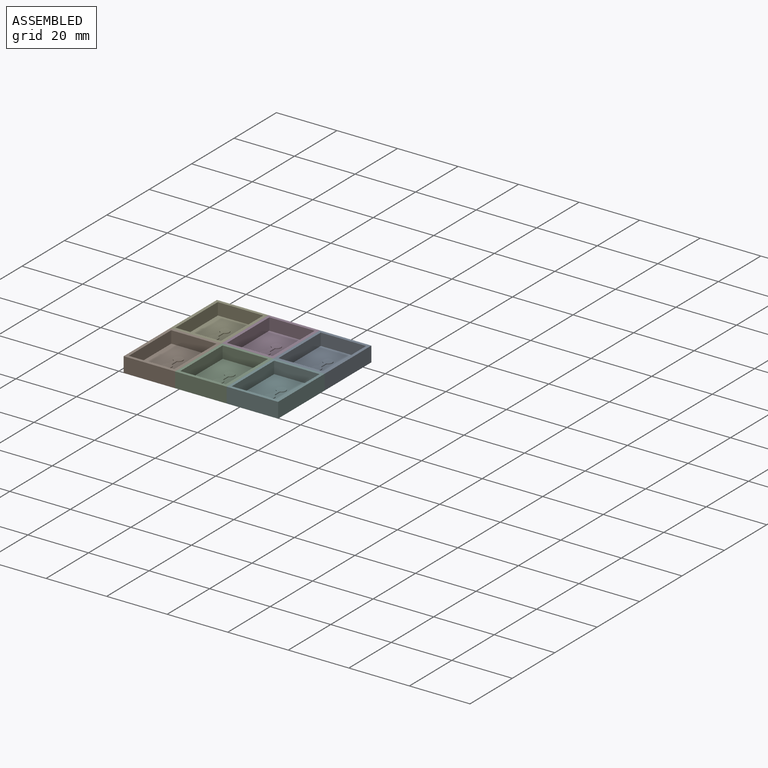
[diagram: assembled view]
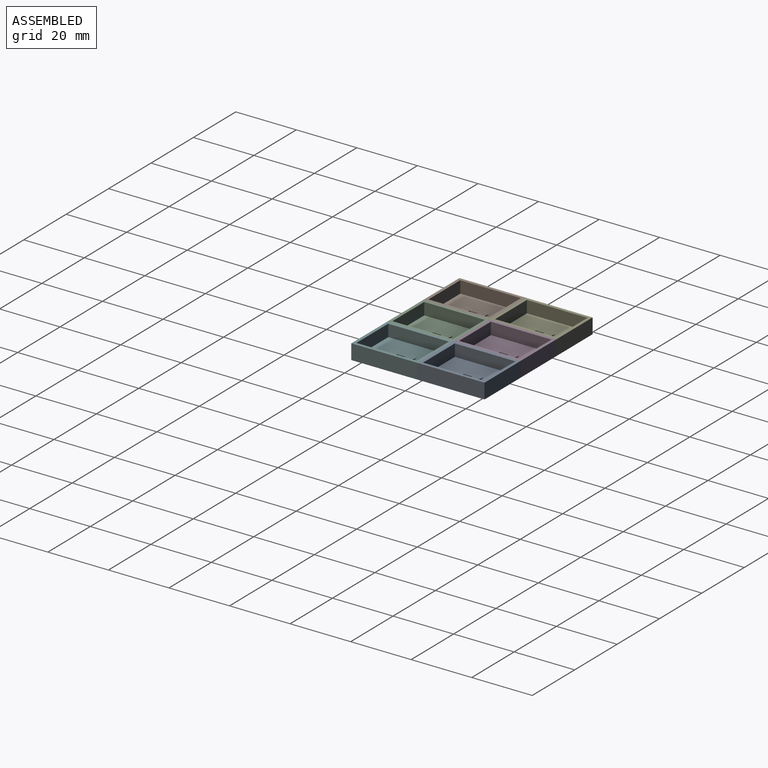
[diagram: assembled view, second angle]
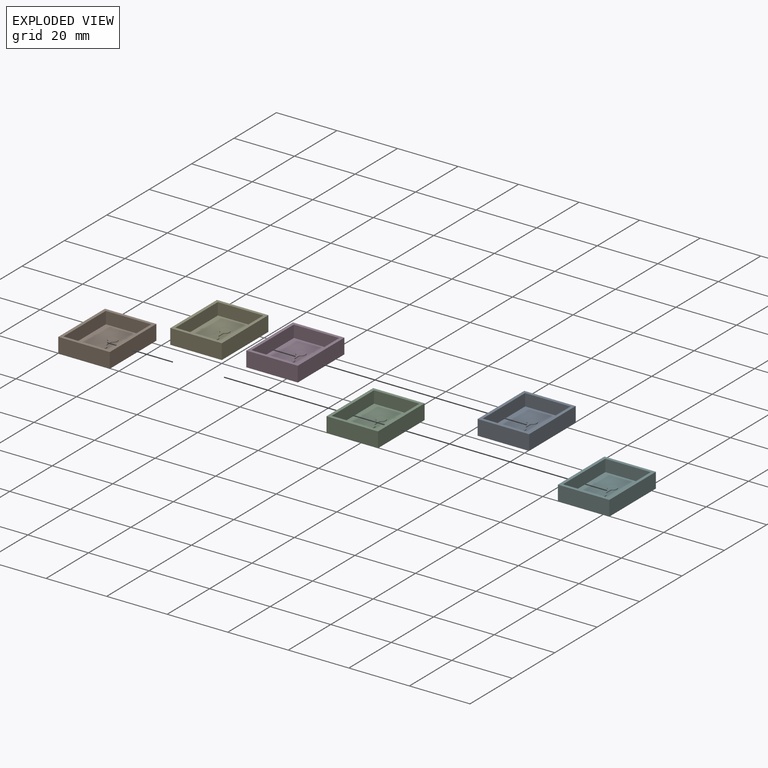
[diagram: exploded view]
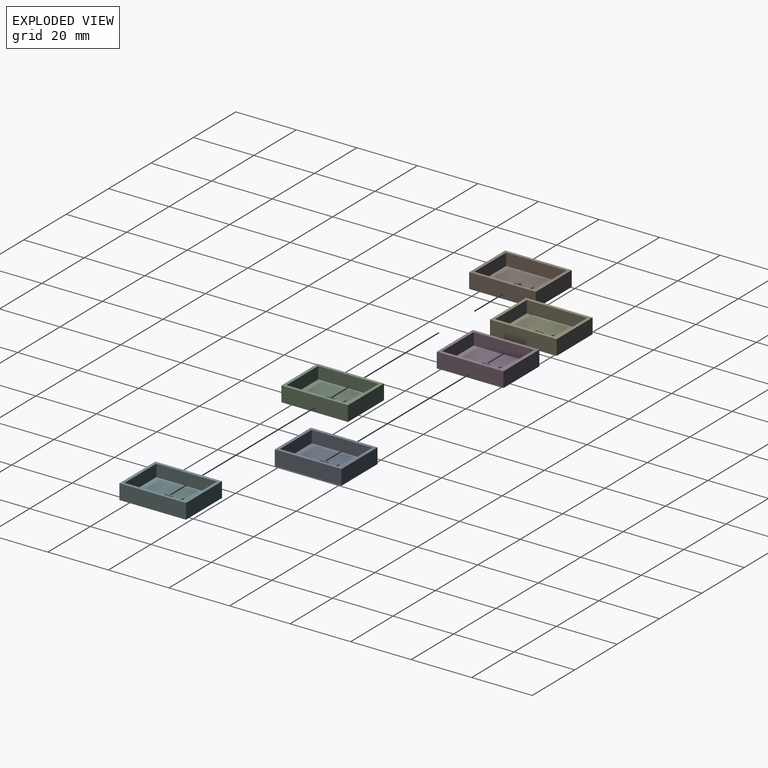
[diagram: exploded view, second angle]
ASSEMBLY  parts=6 mates=12
PART A: 16 faces, bbox 17x22x5 mm
  f0: plane 2.5x0.25mm, normal (1,0,0), area 0.6mm2, adj f1,f3,f4,f5
  f1: cylinder r=1.5mm len=3mm, axis (0,0,-1), area 2.1mm2, adj f0,f2,f4,f5
  f2: plane 2.5x0.25mm, normal (-1,0,0), area 0.6mm2, adj f1,f3,f4,f5
  f3: cylinder r=1.5mm len=3mm, axis (0,0,-1), area 2.1mm2, adj f0,f2,f4,f5
  f4: plane 8.33x3mm, normal (0,0,1), area 16.5mm2, adj f0,f1,f2,f3
  f5: plane 20x15mm, normal (0,0,1), area 283.5mm2, adj f0,f1,f2,f3,f6,f7,f8,f9
  f6: plane 15x4mm, normal (0,-1,0), area 60mm2, adj f5,f7,f9,f14
  f7: plane 20x4mm, normal (1,0,0), area 80mm2, adj f5,f6,f8,f14
  f8: plane 15x4mm, normal (0,1,0), area 60mm2, adj f5,f7,f9,f14
  f9: plane 20x4mm, normal (-1,0,0), area 80mm2, adj f5,f6,f8,f14
  f10: plane 22x5mm, normal (1,0,0), area 110mm2, adj f11,f13,f14,f15
  f11: plane 17x5mm, normal (0,1,0), area 85mm2, adj f10,f12,f14,f15
  f12: plane 22x5mm, normal (-1,0,0), area 110mm2, adj f11,f13,f14,f15
  f13: plane 17x5mm, normal (0,-1,0), area 85mm2, adj f10,f12,f14,f15
  f14: plane 22x17mm, normal (0,0,1), area 74mm2, adj f6,f7,f8,f9,f10,f11,f12,f13
  f15: plane 22x17mm, normal (0,0,-1), area 374mm2, adj f10,f11,f12,f13
PART B: same geometry as A
PART C: same geometry as A
PART D: same geometry as A
PART E: same geometry as A
PART F: same geometry as A
PLACE A t=(25.5,11,-4)mm
PLACE B t=(-8.5,-11,-4)mm
PLACE C t=(8.5,-11,-4)mm
PLACE D t=(8.5,11,-4)mm
PLACE E t=(-8.5,11,-4)mm
PLACE F t=(25.5,-11,-4)mm
MATE fastened D.f13 <-> C.f11  axis (0,-1,0) through (8.5,0,-2.5)mm
MATE fastened C.f12 <-> B.f10  axis (-1,0,0) through (0,-11,-2.5)mm
MATE fastened C.f10 <-> F.f12  axis (1,0,0) through (17,-22,-5)mm
MATE planar F.f13 <-> C.f13  axis (0,-1,0) through (17,-22,-5)mm
MATE fastened E.f13 <-> B.f11  axis (0,-1,0) through (-8.5,0,-2.5)mm
MATE planar D.f14 <-> B.f14  axis (0,0,1) through (0,0,0)mm
MATE planar F.f15 <-> C.f15  axis (0,0,-1) through (25.5,-11,-5)mm
MATE planar A.f15 <-> F.f15  axis (0,0,1) through (34,0,-5)mm
MATE planar E.f14 <-> B.f14  axis (0,0,1) through (0,0,0)mm
MATE fastened A.f12 <-> D.f10  axis (-1,0,0) through (17,22,-2.5)mm
MATE planar C.f14 <-> B.f14  axis (0,0,1) through (0,0,0)mm
MATE planar D.f14 <-> E.f14  axis (0,0,1) through (0,22,0)mm
